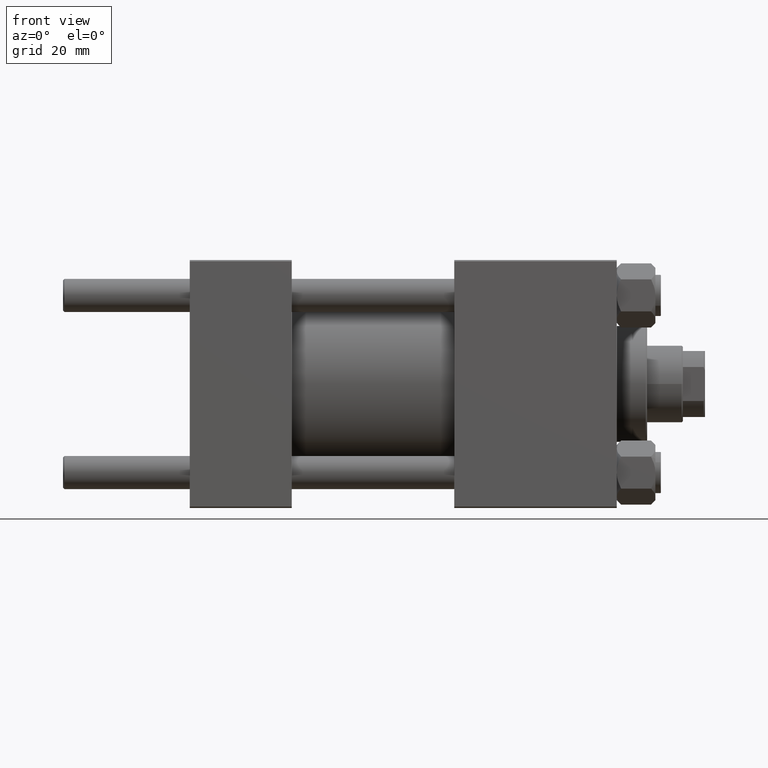
[diagram: clean part render]
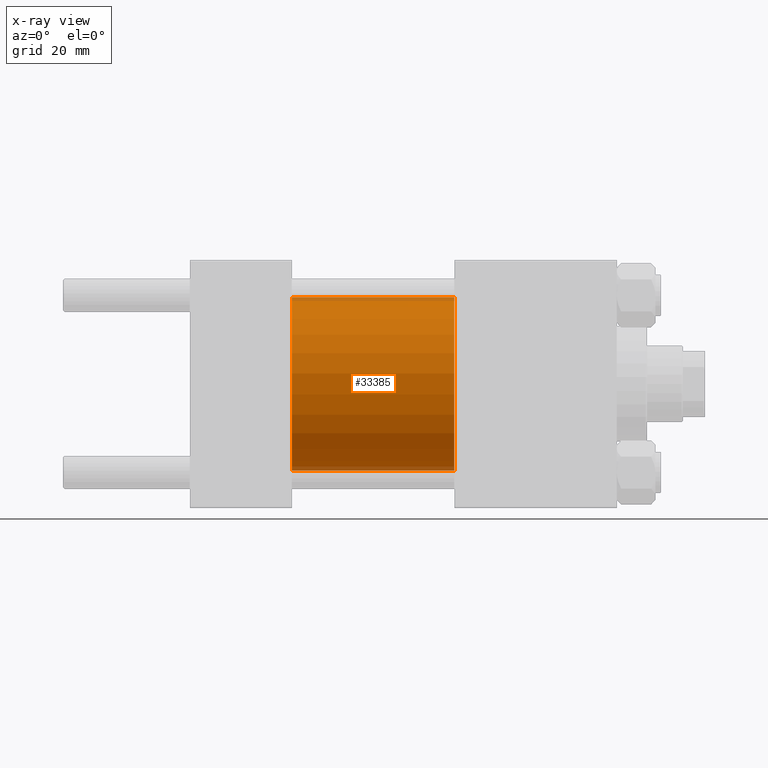
[diagram: x-ray — body ghosted, one internal face saturated and labeled with its STEP entity id]
A machine part, front view, then the same camera in x-ray: the body is ghosted and one INTERNAL B-rep face — a face not visible from any outside direction — is saturated and labeled: STEP entity #33385.
In plain terms, the highlighted cylindrical surface (partial cylindrical patch) has radius 31.5 mm, axis along (-1, -0, -0).
Its self-contained STEP definition (entity closure, byte-faithful):
#3643 = VECTOR ( 'NONE', #19363, 1000.000000000000000 ) ;
#3884 = LINE ( 'NONE', #18728, #41587 ) ;
#4101 = DIRECTION ( 'NONE',  ( 1.000000000000000000, 0.000000000000000000, 0.000000000000000000 ) ) ;
#6569 = CARTESIAN_POINT ( 'NONE',  ( 96.00000000000000000, 0.000000000000000000, 31.50000000000000000 ) ) ;
#7759 = VERTEX_POINT ( 'NONE', #40093 ) ;
#8217 = VERTEX_POINT ( 'NONE', #32619 ) ;
#8929 = CYLINDRICAL_SURFACE ( 'NONE', #42882, 31.50000000000000000 ) ;
#10425 = VERTEX_POINT ( 'NONE', #6569 ) ;
#14146 = ORIENTED_EDGE ( 'NONE', *, *, #38335, .F. ) ;
#14388 = VERTEX_POINT ( 'NONE', #39231 ) ;
#15933 = EDGE_CURVE ( 'NONE', #10425, #14388, #16598, .T. ) ;
#16099 = CARTESIAN_POINT ( 'NONE',  ( 37.00000000000000000, 0.000000000000000000, 0.000000000000000000 ) ) ;
#16598 = CIRCLE ( 'NONE', #40758, 31.50000000000000000 ) ;
#16720 = DIRECTION ( 'NONE',  ( -1.000000000000000000, -0.000000000000000000, -0.000000000000000000 ) ) ;
#17483 = DIRECTION ( 'NONE',  ( 0.000000000000000000, 0.000000000000000000, 1.000000000000000000 ) ) ;
#17589 = CIRCLE ( 'NONE', #32065, 31.50000000000000000 ) ;
#18302 = EDGE_LOOP ( 'NONE', ( #20571, #37399, #36873, #14146 ) ) ;
#18708 = DIRECTION ( 'NONE',  ( 0.000000000000000000, 0.000000000000000000, -1.000000000000000000 ) ) ;
#18728 = CARTESIAN_POINT ( 'NONE',  ( 96.00000000000000000, 3.857637417314162689E-15, -31.50000000000000000 ) ) ;
#18836 = EDGE_CURVE ( 'NONE', #8217, #7759, #17589, .T. ) ;
#19363 = DIRECTION ( 'NONE',  ( -1.000000000000000000, -0.000000000000000000, -0.000000000000000000 ) ) ;
#19442 = CARTESIAN_POINT ( 'NONE',  ( 96.00000000000000000, 0.000000000000000000, 0.000000000000000000 ) ) ;
#20571 = ORIENTED_EDGE ( 'NONE', *, *, #15933, .T. ) ;
#24954 = CARTESIAN_POINT ( 'NONE',  ( 96.00000000000000000, 0.000000000000000000, 31.50000000000000000 ) ) ;
#26934 = LINE ( 'NONE', #24954, #3643 ) ;
#29815 = DIRECTION ( 'NONE',  ( -1.000000000000000000, -0.000000000000000000, -0.000000000000000000 ) ) ;
#31470 = DIRECTION ( 'NONE',  ( 1.000000000000000000, 0.000000000000000000, 0.000000000000000000 ) ) ;
#32065 = AXIS2_PLACEMENT_3D ( 'NONE', #16099, #31470, #46114 ) ;
#32619 = CARTESIAN_POINT ( 'NONE',  ( 37.00000000000000000, 0.000000000000000000, 31.50000000000000000 ) ) ;
#32849 = CARTESIAN_POINT ( 'NONE',  ( 96.00000000000000000, 0.000000000000000000, 0.000000000000000000 ) ) ;
#33385 = ADVANCED_FACE ( 'NONE', ( #44176 ), #8929, .F. ) ;
#36873 = ORIENTED_EDGE ( 'NONE', *, *, #18836, .F. ) ;
#37399 = ORIENTED_EDGE ( 'NONE', *, *, #46252, .T. ) ;
#38335 = EDGE_CURVE ( 'NONE', #10425, #8217, #26934, .T. ) ;
#39231 = CARTESIAN_POINT ( 'NONE',  ( 96.00000000000000000, 3.857637417314162689E-15, -31.50000000000000000 ) ) ;
#40093 = CARTESIAN_POINT ( 'NONE',  ( 37.00000000000000000, 3.857637417314162689E-15, -31.50000000000000000 ) ) ;
#40758 = AXIS2_PLACEMENT_3D ( 'NONE', #19442, #4101, #18708 ) ;
#41587 = VECTOR ( 'NONE', #29815, 1000.000000000000000 ) ;
#42882 = AXIS2_PLACEMENT_3D ( 'NONE', #32849, #16720, #17483 ) ;
#44176 = FACE_OUTER_BOUND ( 'NONE', #18302, .T. ) ;
#46114 = DIRECTION ( 'NONE',  ( 0.000000000000000000, 0.000000000000000000, -1.000000000000000000 ) ) ;
#46252 = EDGE_CURVE ( 'NONE', #14388, #7759, #3884, .T. ) ;